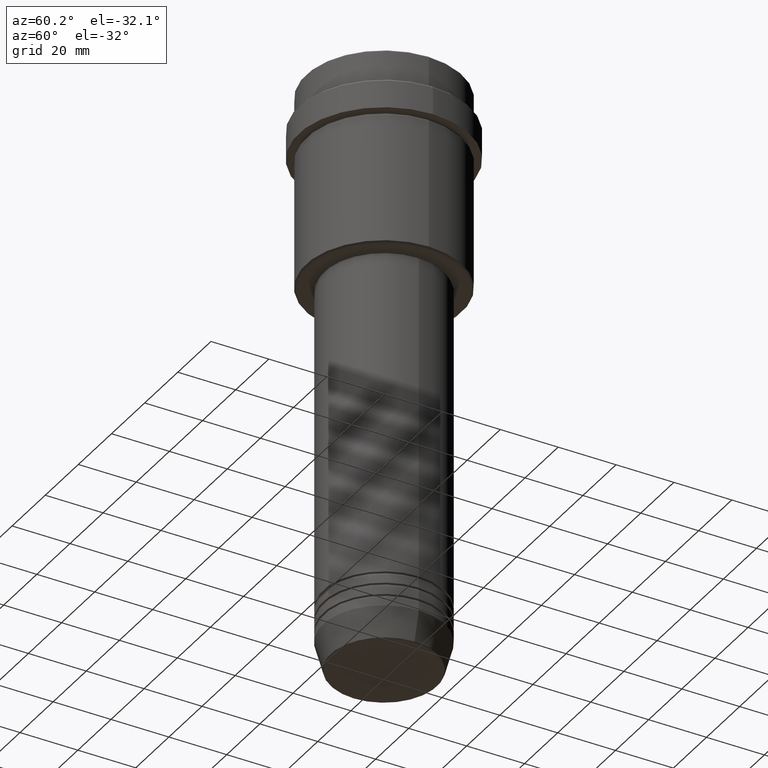
[diagram: clean part render]
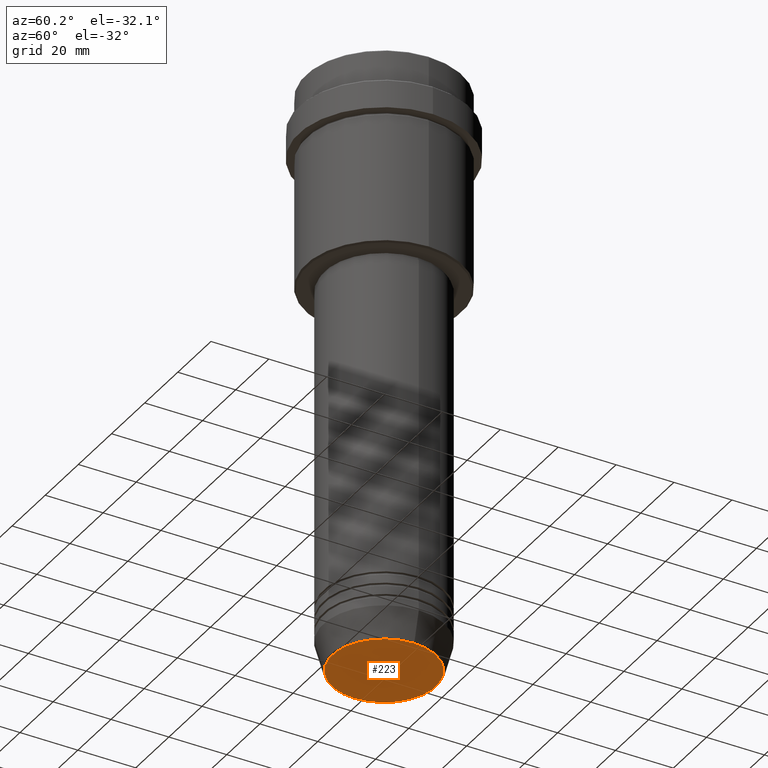
[diagram: same view with one face highlighted and labeled with its STEP entity id]
A machine part, auxiliary view. The second image highlights one B-rep face of the part: STEP entity #223.
In plain terms, the highlighted planar face has unit normal (0, -0, 1).
Its self-contained STEP definition (entity closure, byte-faithful):
#8 = FACE_OUTER_BOUND ( 'NONE', #982, .T. ) ;
#22 = DIRECTION ( 'NONE',  ( 1.000000000000000000, 0.000000000000000000, 0.000000000000000000 ) ) ;
#223 = ADVANCED_FACE ( 'NONE', ( #8 ), #1323, .F. ) ;
#236 = DIRECTION ( 'NONE',  ( 1.000000000000000000, 0.000000000000000000, 0.000000000000000000 ) ) ;
#251 = VERTEX_POINT ( 'NONE', #683 ) ;
#256 = ORIENTED_EDGE ( 'NONE', *, *, #894, .T. ) ;
#353 = DIRECTION ( 'NONE',  ( 0.000000000000000000, 0.000000000000000000, -1.000000000000000000 ) ) ;
#374 = DIRECTION ( 'NONE',  ( 0.000000000000000000, -0.000000000000000000, 1.000000000000000000 ) ) ;
#381 = VERTEX_POINT ( 'NONE', #503 ) ;
#400 = AXIS2_PLACEMENT_3D ( 'NONE', #1136, #981, #236 ) ;
#462 = DIRECTION ( 'NONE',  ( 1.000000000000000000, 0.000000000000000000, 0.000000000000000000 ) ) ;
#503 = CARTESIAN_POINT ( 'NONE',  ( -17.93684458169929030, 2.226202879662624346E-15, -203.0000000000000000 ) ) ;
#677 = CARTESIAN_POINT ( 'NONE',  ( 0.000000000000000000, 0.000000000000000000, -203.0000000000000000 ) ) ;
#683 = CARTESIAN_POINT ( 'NONE',  ( 17.93684458169929030, 0.000000000000000000, -203.0000000000000000 ) ) ;
#834 = CIRCLE ( 'NONE', #924, 17.93684458169929030 ) ;
#894 = EDGE_CURVE ( 'NONE', #251, #381, #834, .T. ) ;
#902 = CARTESIAN_POINT ( 'NONE',  ( 0.000000000000000000, 0.000000000000000000, -203.0000000000000000 ) ) ;
#903 = EDGE_CURVE ( 'NONE', #381, #251, #1018, .T. ) ;
#924 = AXIS2_PLACEMENT_3D ( 'NONE', #677, #353, #22 ) ;
#973 = AXIS2_PLACEMENT_3D ( 'NONE', #902, #374, #462 ) ;
#981 = DIRECTION ( 'NONE',  ( 0.000000000000000000, 0.000000000000000000, -1.000000000000000000 ) ) ;
#982 = EDGE_LOOP ( 'NONE', ( #256, #1259 ) ) ;
#1018 = CIRCLE ( 'NONE', #400, 17.93684458169929030 ) ;
#1136 = CARTESIAN_POINT ( 'NONE',  ( 0.000000000000000000, 0.000000000000000000, -203.0000000000000000 ) ) ;
#1259 = ORIENTED_EDGE ( 'NONE', *, *, #903, .T. ) ;
#1323 = PLANE ( 'NONE',  #973 ) ;